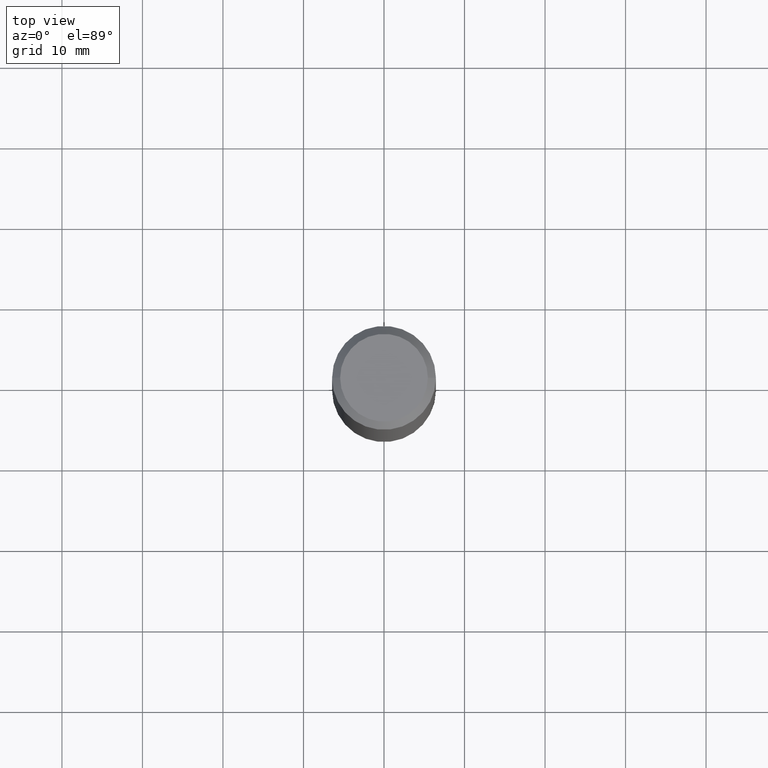
[diagram: clean part render]
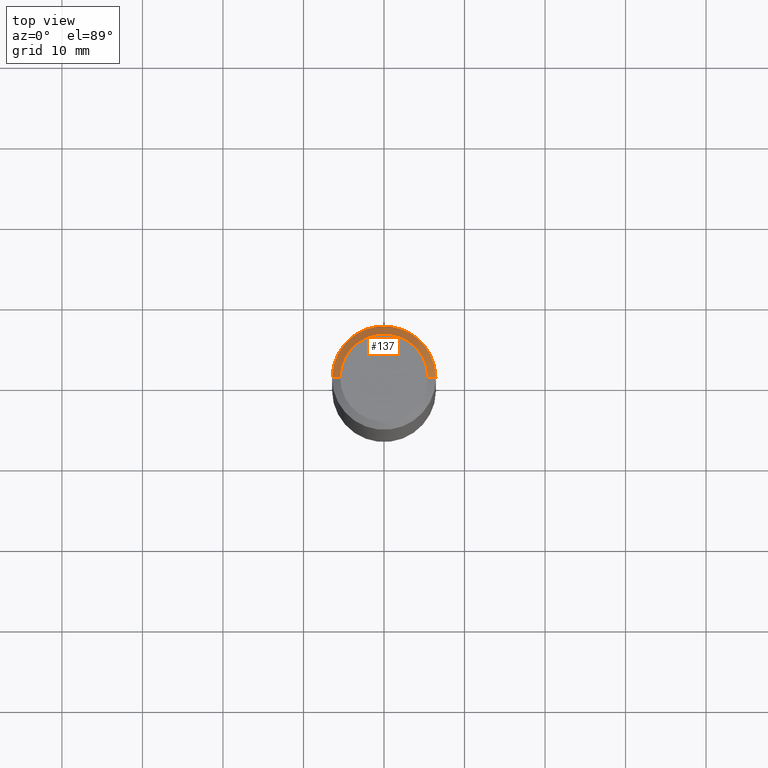
[diagram: same view with one face highlighted and labeled with its STEP entity id]
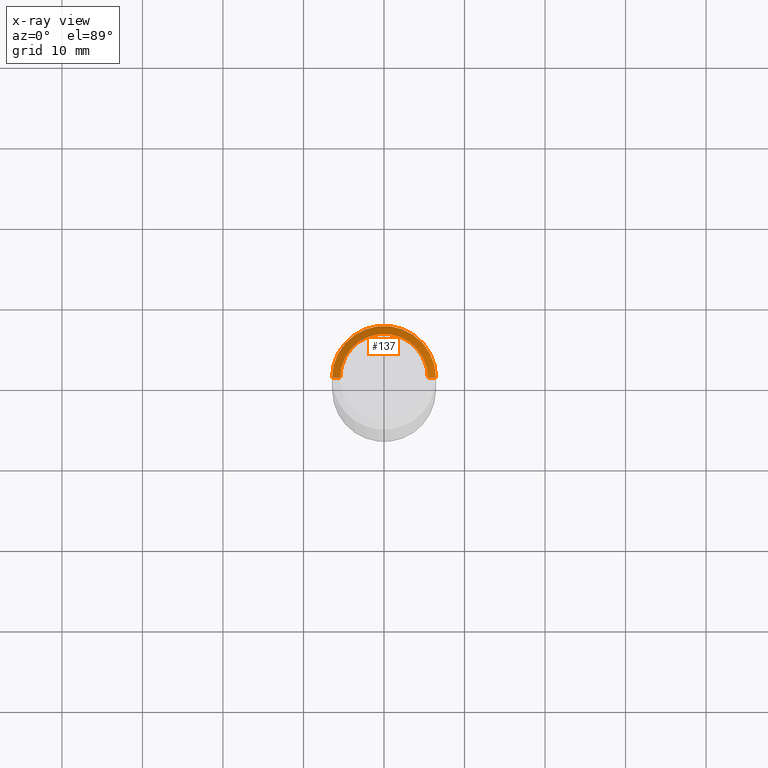
[diagram: x-ray of the same camera — body ghosted, the highlighted face saturated]
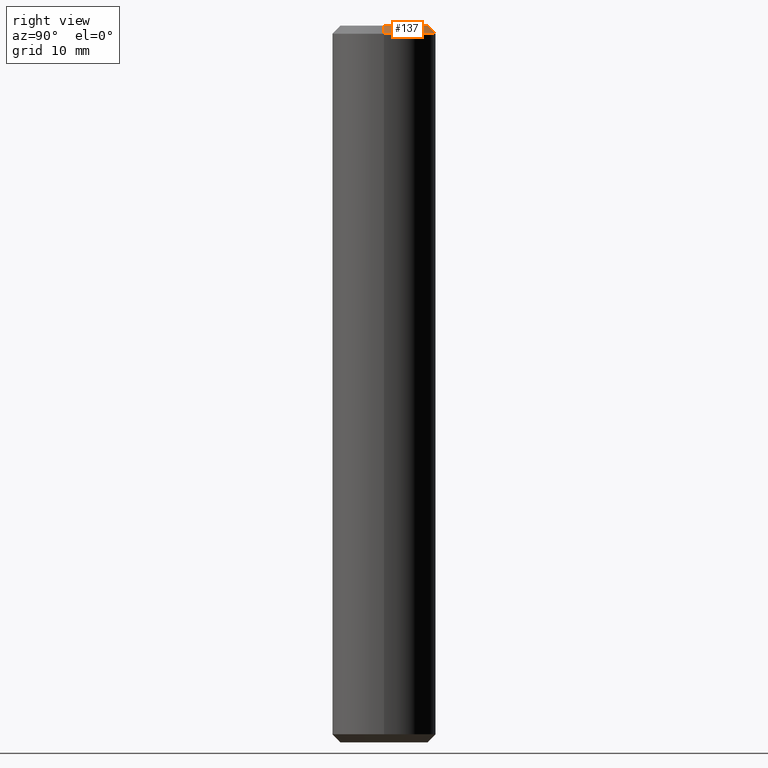
[diagram: same view with one face highlighted and labeled with its STEP entity id]
A machine part, top view. The second image highlights one B-rep face of the part: STEP entity #137.
The next image is the same camera in x-ray: the body ghosted, the highlighted face saturated — about 0% of this face is hidden behind the body in this view.
A second angle (right view) of the same face is appended — the face is thin or edge-on in the first view.
In plain terms, the highlighted conical surface has half-angle 45 deg.
Its self-contained STEP definition (entity closure, byte-faithful):
#12 = LINE ( 'NONE', #263, #245 ) ;
#15 = CARTESIAN_POINT ( 'NONE',  ( -6.450000000000001066, 0.000000000000000000, 87.99999999999998579 ) ) ;
#24 = EDGE_CURVE ( 'NONE', #65, #227, #31, .T. ) ;
#31 = LINE ( 'NONE', #119, #59 ) ;
#32 = ORIENTED_EDGE ( 'NONE', *, *, #115, .F. ) ;
#37 = EDGE_CURVE ( 'NONE', #210, #122, #12, .T. ) ;
#51 = ORIENTED_EDGE ( 'NONE', *, *, #24, .F. ) ;
#59 = VECTOR ( 'NONE', #187, 1000.000000000000000 ) ;
#63 = DIRECTION ( 'NONE',  ( -1.000000000000000000, 0.000000000000000000, 0.000000000000000000 ) ) ;
#65 = VERTEX_POINT ( 'NONE', #95 ) ;
#95 = CARTESIAN_POINT ( 'NONE',  ( -5.449999999999996625, 0.000000000000000000, 89.00000000000000000 ) ) ;
#107 = CARTESIAN_POINT ( 'NONE',  ( 0.000000000000000000, 0.000000000000000000, 89.00000000000000000 ) ) ;
#108 = CONICAL_SURFACE ( 'NONE', #242, 5.449999999999996625, 0.7853981633974431720 ) ;
#115 = EDGE_CURVE ( 'NONE', #227, #122, #158, .T. ) ;
#119 = CARTESIAN_POINT ( 'NONE',  ( -5.449999999999996625, 0.000000000000000000, 89.00000000000000000 ) ) ;
#122 = VERTEX_POINT ( 'NONE', #143 ) ;
#137 = ADVANCED_FACE ( 'NONE', ( #266 ), #108, .T. ) ;
#143 = CARTESIAN_POINT ( 'NONE',  ( 6.450000000000001066, 7.898971854500429678E-16, 87.99999999999998579 ) ) ;
#158 = CIRCLE ( 'NONE', #228, 6.450000000000001066 ) ;
#166 = CARTESIAN_POINT ( 'NONE',  ( 0.000000000000000000, 0.000000000000000000, 87.99999999999998579 ) ) ;
#167 = DIRECTION ( 'NONE',  ( 1.000000000000000000, 0.000000000000000000, 0.000000000000000000 ) ) ;
#172 = AXIS2_PLACEMENT_3D ( 'NONE', #198, #175, #219 ) ;
#175 = DIRECTION ( 'NONE',  ( 0.000000000000000000, 0.000000000000000000, 1.000000000000000000 ) ) ;
#187 = DIRECTION ( 'NONE',  ( -0.7071067811865439090, 0.000000000000000000, -0.7071067811865512365 ) ) ;
#198 = CARTESIAN_POINT ( 'NONE',  ( 0.000000000000000000, 0.000000000000000000, 89.00000000000000000 ) ) ;
#207 = ORIENTED_EDGE ( 'NONE', *, *, #240, .F. ) ;
#210 = VERTEX_POINT ( 'NONE', #214 ) ;
#214 = CARTESIAN_POINT ( 'NONE',  ( 5.449999999999996625, 7.286648454926749993E-16, 89.00000000000000000 ) ) ;
#215 = CIRCLE ( 'NONE', #172, 5.449999999999996625 ) ;
#219 = DIRECTION ( 'NONE',  ( 1.000000000000000000, 0.000000000000000000, 0.000000000000000000 ) ) ;
#227 = VERTEX_POINT ( 'NONE', #15 ) ;
#228 = AXIS2_PLACEMENT_3D ( 'NONE', #166, #251, #167 ) ;
#230 = DIRECTION ( 'NONE',  ( 0.7071067811865439090, 8.659560562354889717E-17, -0.7071067811865512365 ) ) ;
#240 = EDGE_CURVE ( 'NONE', #210, #65, #215, .T. ) ;
#242 = AXIS2_PLACEMENT_3D ( 'NONE', #107, #271, #63 ) ;
#245 = VECTOR ( 'NONE', #230, 1000.000000000000000 ) ;
#251 = DIRECTION ( 'NONE',  ( 0.000000000000000000, 0.000000000000000000, -1.000000000000000000 ) ) ;
#263 = CARTESIAN_POINT ( 'NONE',  ( 5.449999999999996625, 6.674325055353071294E-16, 89.00000000000000000 ) ) ;
#266 = FACE_OUTER_BOUND ( 'NONE', #268, .T. ) ;
#268 = EDGE_LOOP ( 'NONE', ( #207, #270, #32, #51 ) ) ;
#270 = ORIENTED_EDGE ( 'NONE', *, *, #37, .T. ) ;
#271 = DIRECTION ( 'NONE',  ( 0.000000000000000000, 0.000000000000000000, -1.000000000000000000 ) ) ;